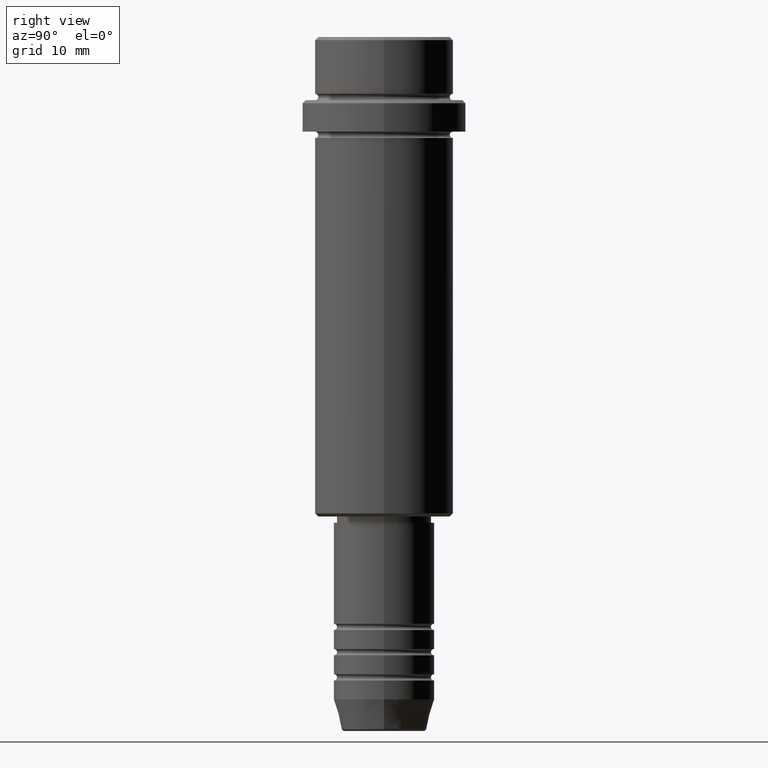
[diagram: clean part render]
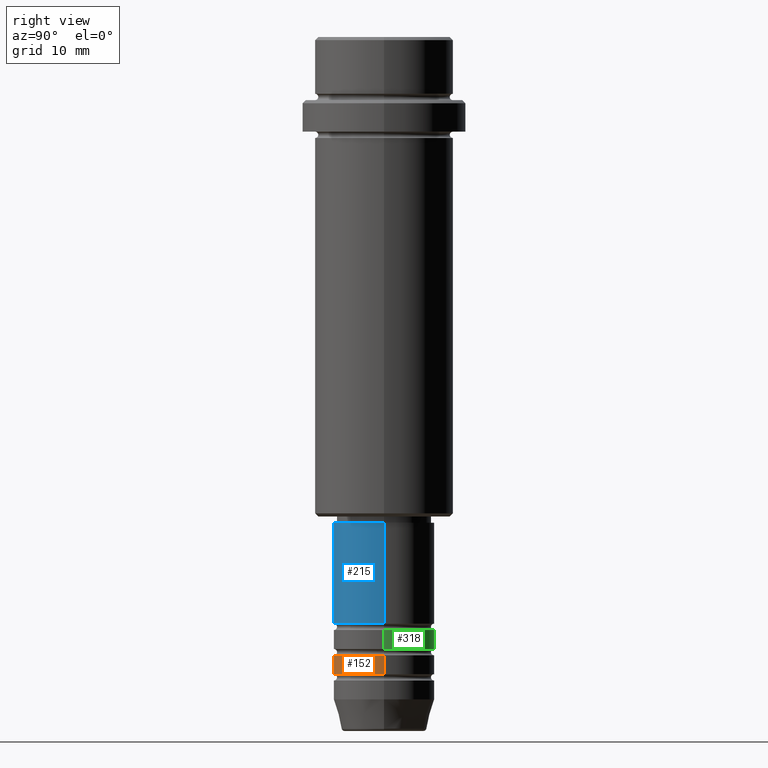
[diagram: same view with three faces highlighted in distinct colors, each labeled with its STEP entity id]
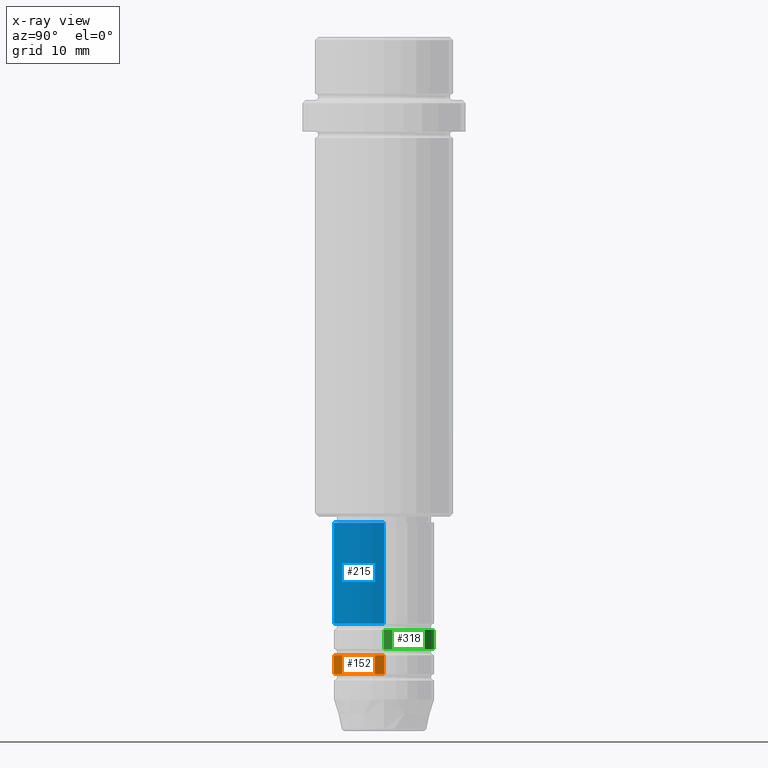
[diagram: x-ray of the same camera — body ghosted, the three highlighted faces saturated]
A machine part, right view with three faces highlighted in distinct colors.
The next image is the same camera in x-ray (body ghosted, the three faces saturated) — at least one of them is partly hidden behind the body in this view.
Their STEP definitions:

[orange] entity #152 — the highlighted cylindrical surface (partial cylindrical patch) has radius 8 mm, axis along (-0, -0, 1).
#13 = CARTESIAN_POINT ( 'NONE',  ( 8.000000000000000000, 0.000000000000000000, 0.000000000000000000 ) ) ;
#65 = AXIS2_PLACEMENT_3D ( 'NONE', #333, #542, #882 ) ;
#68 = DIRECTION ( 'NONE',  ( -0.000000000000000000, -0.000000000000000000, 1.000000000000000000 ) ) ;
#100 = CARTESIAN_POINT ( 'NONE',  ( -8.000000000000000000, 9.797174393178825657E-16, -100.9999999999999005 ) ) ;
#115 = DIRECTION ( 'NONE',  ( -0.000000000000000000, -0.000000000000000000, 1.000000000000000000 ) ) ;
#125 = LINE ( 'NONE', #915, #1013 ) ;
#152 = ADVANCED_FACE ( 'NONE', ( #587 ), #1368, .T. ) ;
#153 = DIRECTION ( 'NONE',  ( -0.000000000000000000, -0.000000000000000000, 1.000000000000000000 ) ) ;
#177 = CARTESIAN_POINT ( 'NONE',  ( 0.000000000000000000, 0.000000000000000000, 0.000000000000000000 ) ) ;
#221 = VERTEX_POINT ( 'NONE', #466 ) ;
#330 = VERTEX_POINT ( 'NONE', #439 ) ;
#333 = CARTESIAN_POINT ( 'NONE',  ( 0.000000000000000000, 0.000000000000000000, -97.99999999999988631 ) ) ;
#439 = CARTESIAN_POINT ( 'NONE',  ( 8.000000000000000000, 0.000000000000000000, -97.99999999999988631 ) ) ;
#447 = EDGE_CURVE ( 'NONE', #946, #1361, #526, .T. ) ;
#462 = ORIENTED_EDGE ( 'NONE', *, *, #447, .T. ) ;
#466 = CARTESIAN_POINT ( 'NONE',  ( -8.000000000000000000, 9.797174393178825657E-16, -97.99999999999988631 ) ) ;
#476 = EDGE_LOOP ( 'NONE', ( #798, #462, #660, #630 ) ) ;
#526 = CIRCLE ( 'NONE', #869, 8.000000000000000000 ) ;
#542 = DIRECTION ( 'NONE',  ( -0.000000000000000000, -0.000000000000000000, 1.000000000000000000 ) ) ;
#587 = FACE_OUTER_BOUND ( 'NONE', #476, .T. ) ;
#611 = EDGE_CURVE ( 'NONE', #946, #221, #125, .T. ) ;
#630 = ORIENTED_EDGE ( 'NONE', *, *, #979, .F. ) ;
#653 = CIRCLE ( 'NONE', #65, 8.000000000000000000 ) ;
#660 = ORIENTED_EDGE ( 'NONE', *, *, #1131, .T. ) ;
#673 = AXIS2_PLACEMENT_3D ( 'NONE', #177, #153, #1096 ) ;
#798 = ORIENTED_EDGE ( 'NONE', *, *, #611, .F. ) ;
#869 = AXIS2_PLACEMENT_3D ( 'NONE', #1045, #68, #1254 ) ;
#882 = DIRECTION ( 'NONE',  ( 1.000000000000000000, 0.000000000000000000, 0.000000000000000000 ) ) ;
#915 = CARTESIAN_POINT ( 'NONE',  ( -8.000000000000000000, 9.797174393178825657E-16, 0.000000000000000000 ) ) ;
#946 = VERTEX_POINT ( 'NONE', #100 ) ;
#979 = EDGE_CURVE ( 'NONE', #221, #330, #653, .T. ) ;
#1013 = VECTOR ( 'NONE', #1364, 1000.000000000000000 ) ;
#1045 = CARTESIAN_POINT ( 'NONE',  ( 0.000000000000000000, 0.000000000000000000, -100.9999999999999005 ) ) ;
#1046 = VECTOR ( 'NONE', #115, 1000.000000000000000 ) ;
#1096 = DIRECTION ( 'NONE',  ( 1.000000000000000000, 0.000000000000000000, 0.000000000000000000 ) ) ;
#1119 = LINE ( 'NONE', #13, #1046 ) ;
#1131 = EDGE_CURVE ( 'NONE', #1361, #330, #1119, .T. ) ;
#1254 = DIRECTION ( 'NONE',  ( 1.000000000000000000, 0.000000000000000000, 0.000000000000000000 ) ) ;
#1361 = VERTEX_POINT ( 'NONE', #1384 ) ;
#1364 = DIRECTION ( 'NONE',  ( -0.000000000000000000, -0.000000000000000000, 1.000000000000000000 ) ) ;
#1368 = CYLINDRICAL_SURFACE ( 'NONE', #673, 8.000000000000000000 ) ;
#1384 = CARTESIAN_POINT ( 'NONE',  ( 8.000000000000000000, 0.000000000000000000, -100.9999999999999005 ) ) ;

[blue] entity #215 — the highlighted cylindrical surface (partial cylindrical patch) has radius 8 mm, axis along (-0, -0, 1).
#24 = DIRECTION ( 'NONE',  ( 1.000000000000000000, 0.000000000000000000, 0.000000000000000000 ) ) ;
#59 = AXIS2_PLACEMENT_3D ( 'NONE', #1217, #1001, #24 ) ;
#90 = CIRCLE ( 'NONE', #374, 8.000000000000000000 ) ;
#95 = CARTESIAN_POINT ( 'NONE',  ( 8.000000000000000000, 0.000000000000000000, -92.99999999999988631 ) ) ;
#191 = AXIS2_PLACEMENT_3D ( 'NONE', #421, #519, #1280 ) ;
#198 = VERTEX_POINT ( 'NONE', #441 ) ;
#202 = CARTESIAN_POINT ( 'NONE',  ( -8.000000000000000000, 9.797174393178825657E-16, 0.000000000000000000 ) ) ;
#215 = ADVANCED_FACE ( 'NONE', ( #1205 ), #561, .T. ) ;
#226 = CARTESIAN_POINT ( 'NONE',  ( 0.000000000000000000, 0.000000000000000000, -77.00000000000000000 ) ) ;
#255 = CIRCLE ( 'NONE', #191, 8.000000000000000000 ) ;
#265 = EDGE_CURVE ( 'NONE', #363, #1345, #321, .T. ) ;
#309 = CARTESIAN_POINT ( 'NONE',  ( 8.000000000000000000, 0.000000000000000000, 0.000000000000000000 ) ) ;
#321 = LINE ( 'NONE', #309, #948 ) ;
#363 = VERTEX_POINT ( 'NONE', #95 ) ;
#374 = AXIS2_PLACEMENT_3D ( 'NONE', #226, #1319, #1200 ) ;
#394 = ORIENTED_EDGE ( 'NONE', *, *, #265, .T. ) ;
#409 = ORIENTED_EDGE ( 'NONE', *, *, #1165, .F. ) ;
#421 = CARTESIAN_POINT ( 'NONE',  ( 0.000000000000000000, 0.000000000000000000, -92.99999999999988631 ) ) ;
#441 = CARTESIAN_POINT ( 'NONE',  ( -8.000000000000000000, 9.797174393178825657E-16, -77.00000000000000000 ) ) ;
#519 = DIRECTION ( 'NONE',  ( -0.000000000000000000, -0.000000000000000000, 1.000000000000000000 ) ) ;
#557 = EDGE_LOOP ( 'NONE', ( #886, #622, #394, #409 ) ) ;
#561 = CYLINDRICAL_SURFACE ( 'NONE', #59, 8.000000000000000000 ) ;
#622 = ORIENTED_EDGE ( 'NONE', *, *, #922, .T. ) ;
#639 = CARTESIAN_POINT ( 'NONE',  ( 8.000000000000000000, 0.000000000000000000, -77.00000000000000000 ) ) ;
#739 = VERTEX_POINT ( 'NONE', #1030 ) ;
#886 = ORIENTED_EDGE ( 'NONE', *, *, #953, .F. ) ;
#922 = EDGE_CURVE ( 'NONE', #739, #363, #255, .T. ) ;
#926 = VECTOR ( 'NONE', #1414, 1000.000000000000000 ) ;
#948 = VECTOR ( 'NONE', #962, 1000.000000000000000 ) ;
#953 = EDGE_CURVE ( 'NONE', #739, #198, #1179, .T. ) ;
#962 = DIRECTION ( 'NONE',  ( -0.000000000000000000, -0.000000000000000000, 1.000000000000000000 ) ) ;
#1001 = DIRECTION ( 'NONE',  ( -0.000000000000000000, -0.000000000000000000, 1.000000000000000000 ) ) ;
#1030 = CARTESIAN_POINT ( 'NONE',  ( -8.000000000000000000, 9.797174393178825657E-16, -92.99999999999988631 ) ) ;
#1165 = EDGE_CURVE ( 'NONE', #198, #1345, #90, .T. ) ;
#1179 = LINE ( 'NONE', #202, #926 ) ;
#1200 = DIRECTION ( 'NONE',  ( 1.000000000000000000, 0.000000000000000000, 0.000000000000000000 ) ) ;
#1205 = FACE_OUTER_BOUND ( 'NONE', #557, .T. ) ;
#1217 = CARTESIAN_POINT ( 'NONE',  ( 0.000000000000000000, 0.000000000000000000, 0.000000000000000000 ) ) ;
#1280 = DIRECTION ( 'NONE',  ( 1.000000000000000000, 0.000000000000000000, 0.000000000000000000 ) ) ;
#1319 = DIRECTION ( 'NONE',  ( -0.000000000000000000, -0.000000000000000000, 1.000000000000000000 ) ) ;
#1345 = VERTEX_POINT ( 'NONE', #639 ) ;
#1414 = DIRECTION ( 'NONE',  ( -0.000000000000000000, -0.000000000000000000, 1.000000000000000000 ) ) ;

[green] entity #318 — the highlighted cylindrical surface (partial cylindrical patch) has radius 8 mm, axis along (-0, -0, 1).
#7 = DIRECTION ( 'NONE',  ( -0.000000000000000000, -0.000000000000000000, 1.000000000000000000 ) ) ;
#18 = CARTESIAN_POINT ( 'NONE',  ( 0.000000000000000000, 0.000000000000000000, 0.000000000000000000 ) ) ;
#53 = DIRECTION ( 'NONE',  ( -0.000000000000000000, -0.000000000000000000, 1.000000000000000000 ) ) ;
#64 = ORIENTED_EDGE ( 'NONE', *, *, #758, .F. ) ;
#69 = DIRECTION ( 'NONE',  ( 1.000000000000000000, 0.000000000000000000, 0.000000000000000000 ) ) ;
#81 = EDGE_CURVE ( 'NONE', #137, #1023, #83, .T. ) ;
#83 = CIRCLE ( 'NONE', #117, 8.000000000000000000 ) ;
#84 = DIRECTION ( 'NONE',  ( -0.000000000000000000, -0.000000000000000000, 1.000000000000000000 ) ) ;
#117 = AXIS2_PLACEMENT_3D ( 'NONE', #477, #53, #170 ) ;
#135 = VERTEX_POINT ( 'NONE', #1037 ) ;
#137 = VERTEX_POINT ( 'NONE', #1029 ) ;
#170 = DIRECTION ( 'NONE',  ( 1.000000000000000000, 0.000000000000000000, 0.000000000000000000 ) ) ;
#173 = LINE ( 'NONE', #274, #324 ) ;
#274 = CARTESIAN_POINT ( 'NONE',  ( 8.000000000000000000, 0.000000000000000000, 0.000000000000000000 ) ) ;
#289 = DIRECTION ( 'NONE',  ( -0.000000000000000000, -0.000000000000000000, 1.000000000000000000 ) ) ;
#296 = DIRECTION ( 'NONE',  ( -0.000000000000000000, -0.000000000000000000, 1.000000000000000000 ) ) ;
#318 = ADVANCED_FACE ( 'NONE', ( #981 ), #674, .T. ) ;
#324 = VECTOR ( 'NONE', #296, 1000.000000000000000 ) ;
#436 = ORIENTED_EDGE ( 'NONE', *, *, #81, .T. ) ;
#453 = EDGE_LOOP ( 'NONE', ( #436, #853, #982, #64 ) ) ;
#477 = CARTESIAN_POINT ( 'NONE',  ( 0.000000000000000000, 0.000000000000000000, -96.99999999999988631 ) ) ;
#496 = LINE ( 'NONE', #1039, #1068 ) ;
#509 = AXIS2_PLACEMENT_3D ( 'NONE', #18, #7, #757 ) ;
#568 = CARTESIAN_POINT ( 'NONE',  ( -8.000000000000000000, 9.797174393178825657E-16, -93.99999999999988631 ) ) ;
#575 = CIRCLE ( 'NONE', #832, 8.000000000000000000 ) ;
#586 = CARTESIAN_POINT ( 'NONE',  ( 0.000000000000000000, 0.000000000000000000, -93.99999999999988631 ) ) ;
#674 = CYLINDRICAL_SURFACE ( 'NONE', #509, 8.000000000000000000 ) ;
#718 = VERTEX_POINT ( 'NONE', #568 ) ;
#757 = DIRECTION ( 'NONE',  ( 1.000000000000000000, 0.000000000000000000, 0.000000000000000000 ) ) ;
#758 = EDGE_CURVE ( 'NONE', #137, #135, #173, .T. ) ;
#832 = AXIS2_PLACEMENT_3D ( 'NONE', #586, #289, #69 ) ;
#842 = EDGE_CURVE ( 'NONE', #1023, #718, #496, .T. ) ;
#853 = ORIENTED_EDGE ( 'NONE', *, *, #842, .T. ) ;
#981 = FACE_OUTER_BOUND ( 'NONE', #453, .T. ) ;
#982 = ORIENTED_EDGE ( 'NONE', *, *, #1191, .F. ) ;
#1023 = VERTEX_POINT ( 'NONE', #1348 ) ;
#1029 = CARTESIAN_POINT ( 'NONE',  ( 8.000000000000000000, 0.000000000000000000, -96.99999999999988631 ) ) ;
#1037 = CARTESIAN_POINT ( 'NONE',  ( 8.000000000000000000, 0.000000000000000000, -93.99999999999988631 ) ) ;
#1039 = CARTESIAN_POINT ( 'NONE',  ( -8.000000000000000000, 9.797174393178825657E-16, 0.000000000000000000 ) ) ;
#1068 = VECTOR ( 'NONE', #84, 1000.000000000000000 ) ;
#1191 = EDGE_CURVE ( 'NONE', #135, #718, #575, .T. ) ;
#1348 = CARTESIAN_POINT ( 'NONE',  ( -8.000000000000000000, 9.797174393178825657E-16, -96.99999999999988631 ) ) ;